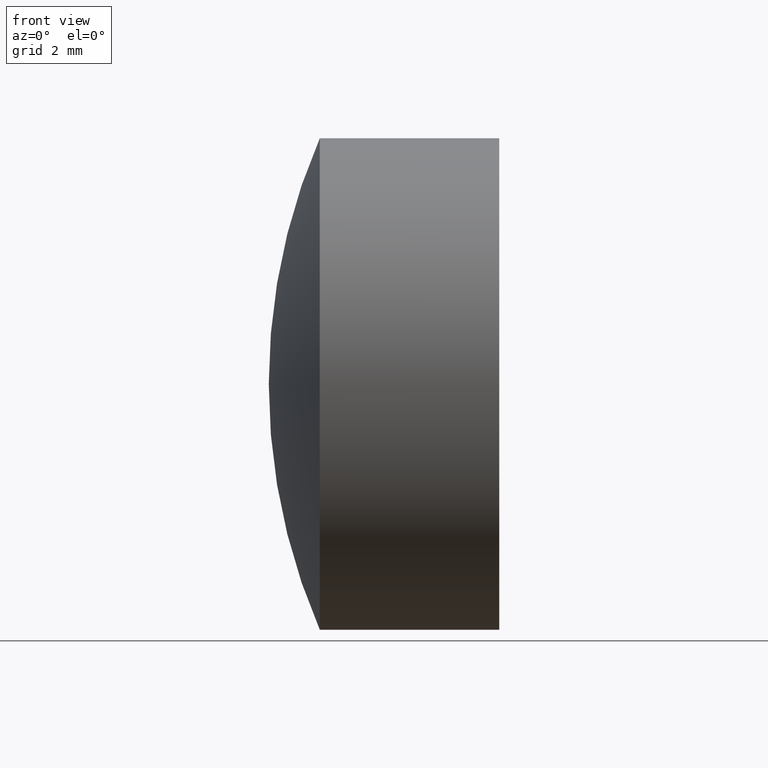
[diagram: clean part render]
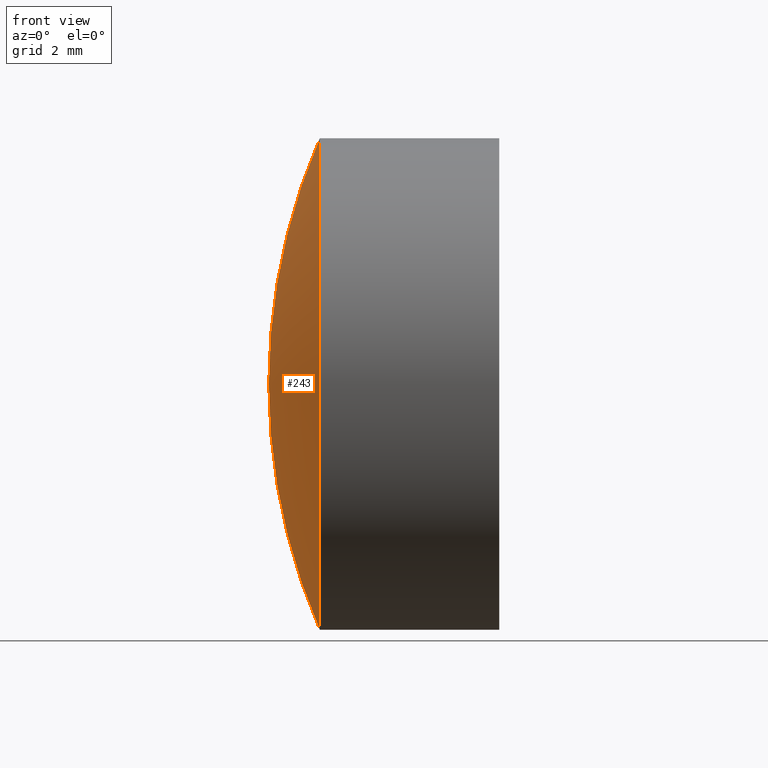
[diagram: same view with one face highlighted and labeled with its STEP entity id]
A machine part, front view. The second image highlights one B-rep face of the part: STEP entity #243.
In plain terms, the highlighted spherical surface has radius 15.95 mm.
Its self-contained STEP definition (entity closure, byte-faithful):
#3 = ORIENTED_EDGE ( 'NONE', *, *, #52, .F. ) ;
#6 = EDGE_LOOP ( 'NONE', ( #250, #280, #3 ) ) ;
#10 = AXIS2_PLACEMENT_3D ( 'NONE', #308, #201, #259 ) ;
#19 = CIRCLE ( 'NONE', #121, 6.350000000000005900 ) ;
#47 = CARTESIAN_POINT ( 'NONE',  ( 41.82197047241489700, 0.0000000000000000000, 1.018952376942791700E-014 ) ) ;
#52 = EDGE_CURVE ( 'NONE', #212, #282, #232, .T. ) ;
#71 = DIRECTION ( 'NONE',  ( 0.0000000000000000000, 1.224646799147353000E-016, -1.000000000000000000 ) ) ;
#86 = DIRECTION ( 'NONE',  ( 0.0000000000000000000, 1.000000000000000000, -0.0000000000000000000 ) ) ;
#89 = DIRECTION ( 'NONE',  ( -1.000000000000000000, -0.0000000000000000000, -0.0000000000000000000 ) ) ;
#121 = AXIS2_PLACEMENT_3D ( 'NONE', #251, #89, #337 ) ;
#125 = FACE_OUTER_BOUND ( 'NONE', #6, .T. ) ;
#158 = AXIS2_PLACEMENT_3D ( 'NONE', #332, #86, #333 ) ;
#167 = SPHERICAL_SURFACE ( 'NONE', #10, 15.94999999999999900 ) ;
#171 = CIRCLE ( 'NONE', #237, 15.94999999999999900 ) ;
#181 = EDGE_CURVE ( 'NONE', #213, #282, #171, .T. ) ;
#200 = CARTESIAN_POINT ( 'NONE',  ( 25.87197047241490100, 0.0000000000000000000, 9.212867947107902300E-015 ) ) ;
#201 = DIRECTION ( 'NONE',  ( -0.0000000000000000000, -1.000000000000000000, -0.0000000000000000000 ) ) ;
#210 = CARTESIAN_POINT ( 'NONE',  ( 27.19049754587739900, 0.0000000000000000000, -6.350000000000000500 ) ) ;
#212 = VERTEX_POINT ( 'NONE', #210 ) ;
#213 = VERTEX_POINT ( 'NONE', #290 ) ;
#232 = CIRCLE ( 'NONE', #158, 15.94999999999999900 ) ;
#234 = DIRECTION ( 'NONE',  ( 0.0000000000000000000, -1.000000000000000000, -1.224646799147353200E-016 ) ) ;
#237 = AXIS2_PLACEMENT_3D ( 'NONE', #47, #234, #71 ) ;
#243 = ADVANCED_FACE ( 'NONE', ( #125 ), #167, .T. ) ;
#250 = ORIENTED_EDGE ( 'NONE', *, *, #299, .T. ) ;
#251 = CARTESIAN_POINT ( 'NONE',  ( 27.19049754587739500, 0.0000000000000000000, 0.0000000000000000000 ) ) ;
#259 = DIRECTION ( 'NONE',  ( 0.0000000000000000000, 0.0000000000000000000, -1.000000000000000000 ) ) ;
#280 = ORIENTED_EDGE ( 'NONE', *, *, #181, .T. ) ;
#282 = VERTEX_POINT ( 'NONE', #200 ) ;
#290 = CARTESIAN_POINT ( 'NONE',  ( 27.19049754587739900, -7.776507174585694100E-016, 6.350000000000011200 ) ) ;
#299 = EDGE_CURVE ( 'NONE', #212, #213, #19, .T. ) ;
#308 = CARTESIAN_POINT ( 'NONE',  ( 41.82197047241489700, 0.0000000000000000000, 1.018952376942791700E-014 ) ) ;
#332 = CARTESIAN_POINT ( 'NONE',  ( 41.82197047241489700, 0.0000000000000000000, 1.018952376942791700E-014 ) ) ;
#333 = DIRECTION ( 'NONE',  ( 0.0000000000000000000, 0.0000000000000000000, 1.000000000000000000 ) ) ;
#337 = DIRECTION ( 'NONE',  ( 0.0000000000000000000, 0.0000000000000000000, 1.000000000000000000 ) ) ;